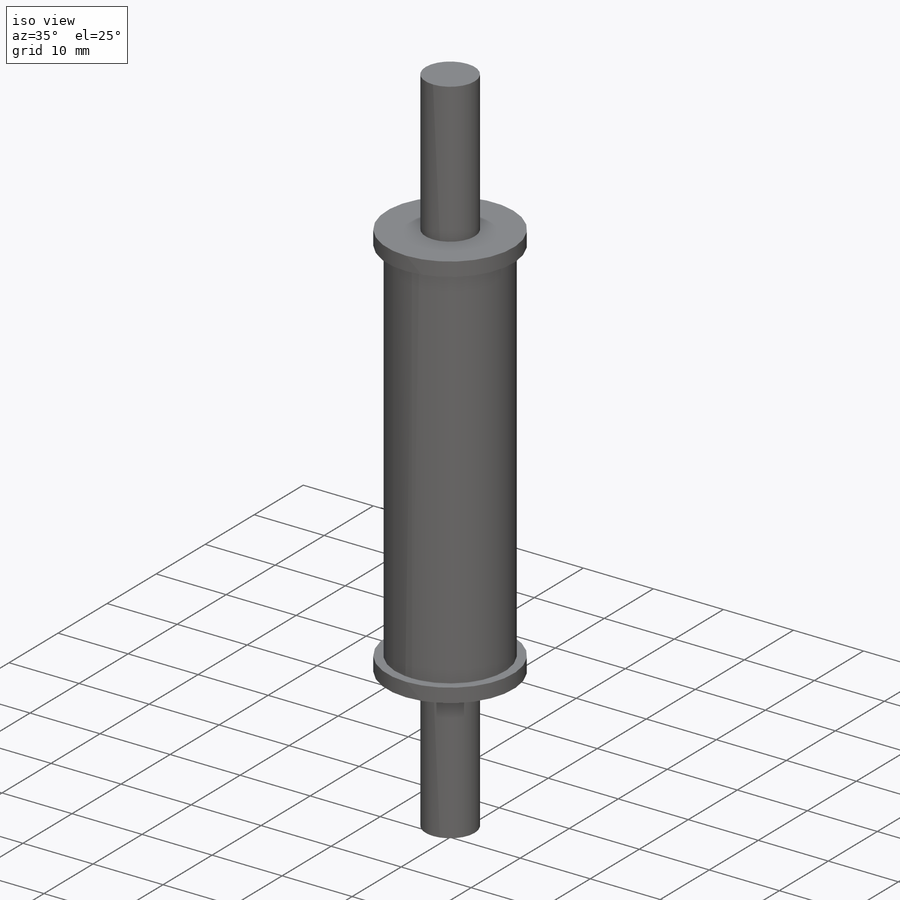
[diagram: iso view]
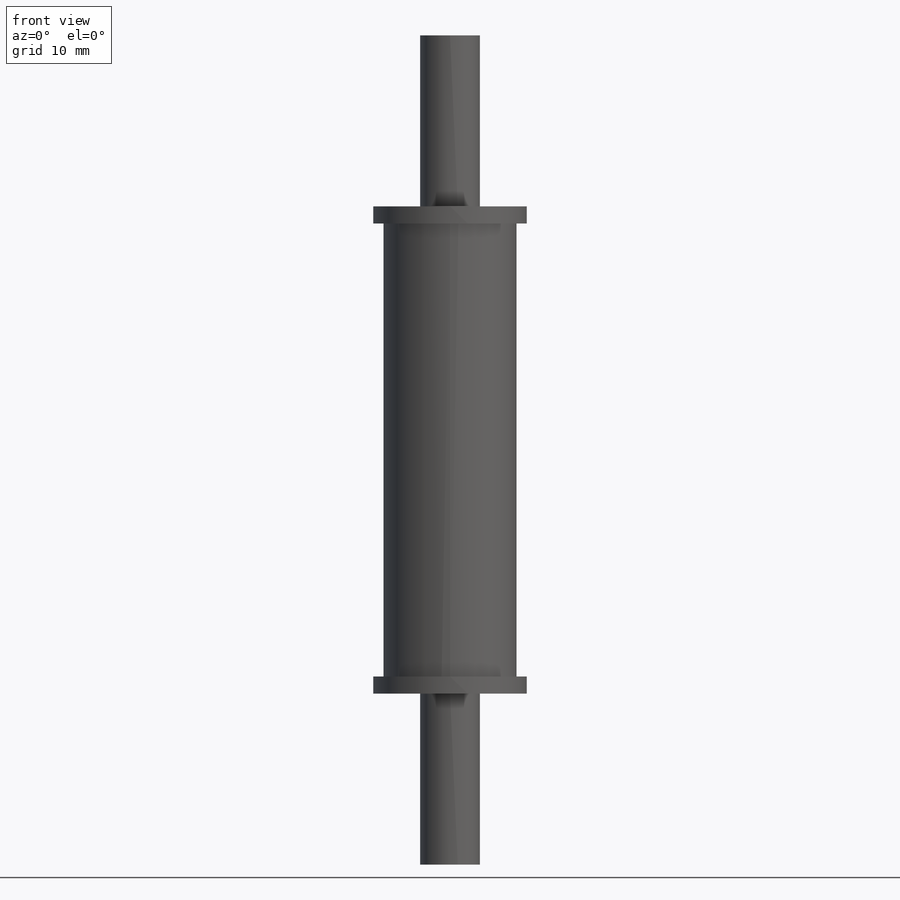
[diagram: front view]
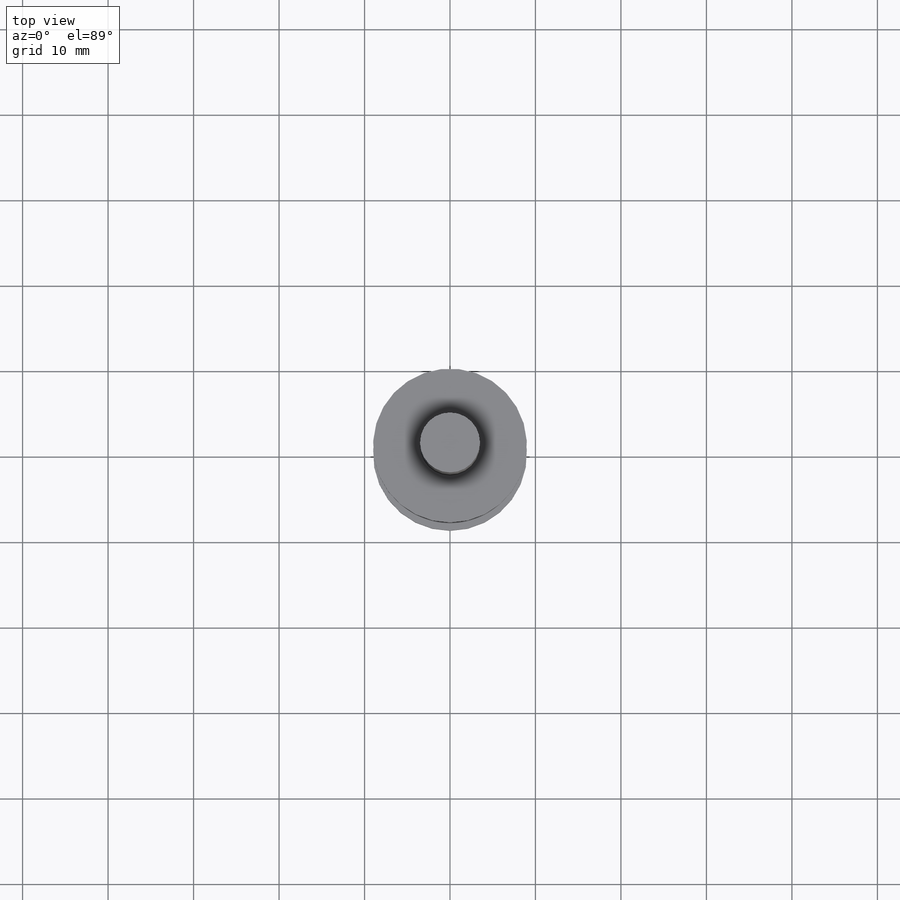
[diagram: top view]
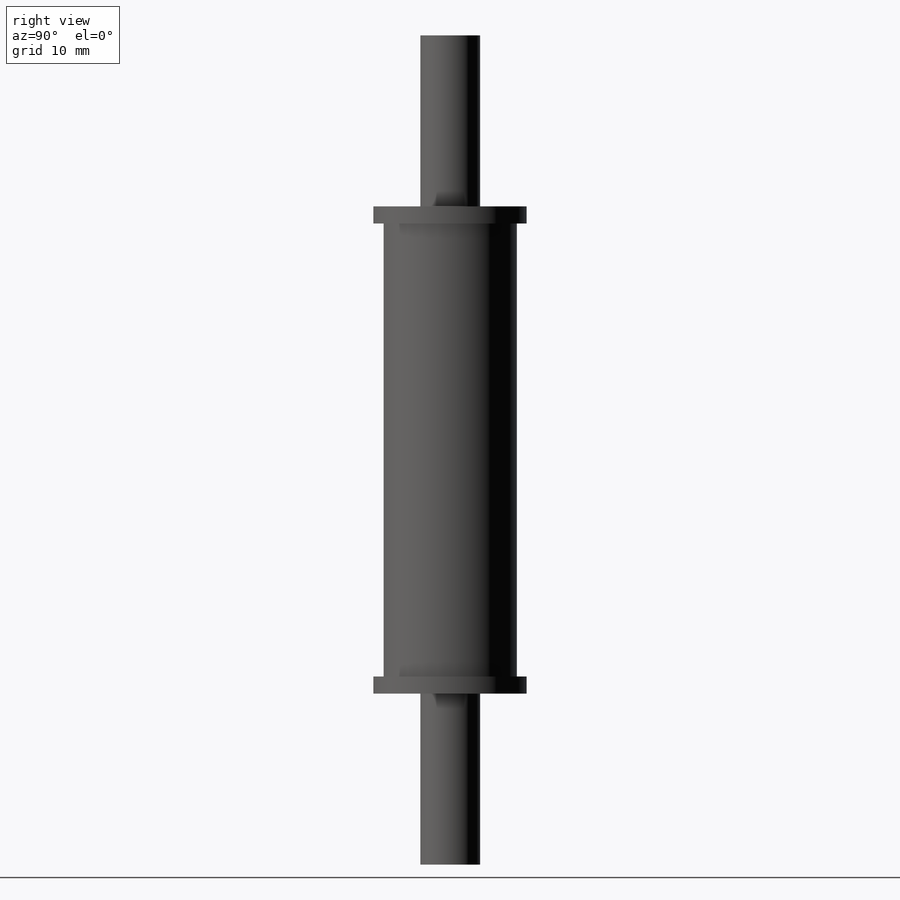
[diagram: right view]
SOLIDWORKS PART (.sldprt)
format: sldprt  version: not decoded by parser v0  size: 186,368 bytes
history: native  units: mm
features: sketch x4, extrude x2, material x1, cut_extrude x1 (+15 scaffold rows collapsed)
feature tree (23):
  scaffold x15  (default folders/planes/origin — collapsed)
  material  "Material <not specified>"
  sketch  "Sketch3"  dims[D1=~12.96642mm]
  extrude  "Extrude2"  Depth=28.5mm
  sketch  "Sketch4"  dims[D1=~3.849114mm]
  cut_extrude  "Cut-Extrude2"  Depth=26.5mm
  sketch  "Sketch5"  dims[D1=~2.50554mm]
  extrude  "Extrude3"  Depth=48.5mm
  sketch  "Sketch6"  dims[D1=~7.985585mm]
decode coverage: 7 of 7 modeling features carry decoded parameters
note: ~ marks probable driven/reference dimensions
note: suppression state not decoded; provenance and decode notes live in map.json
